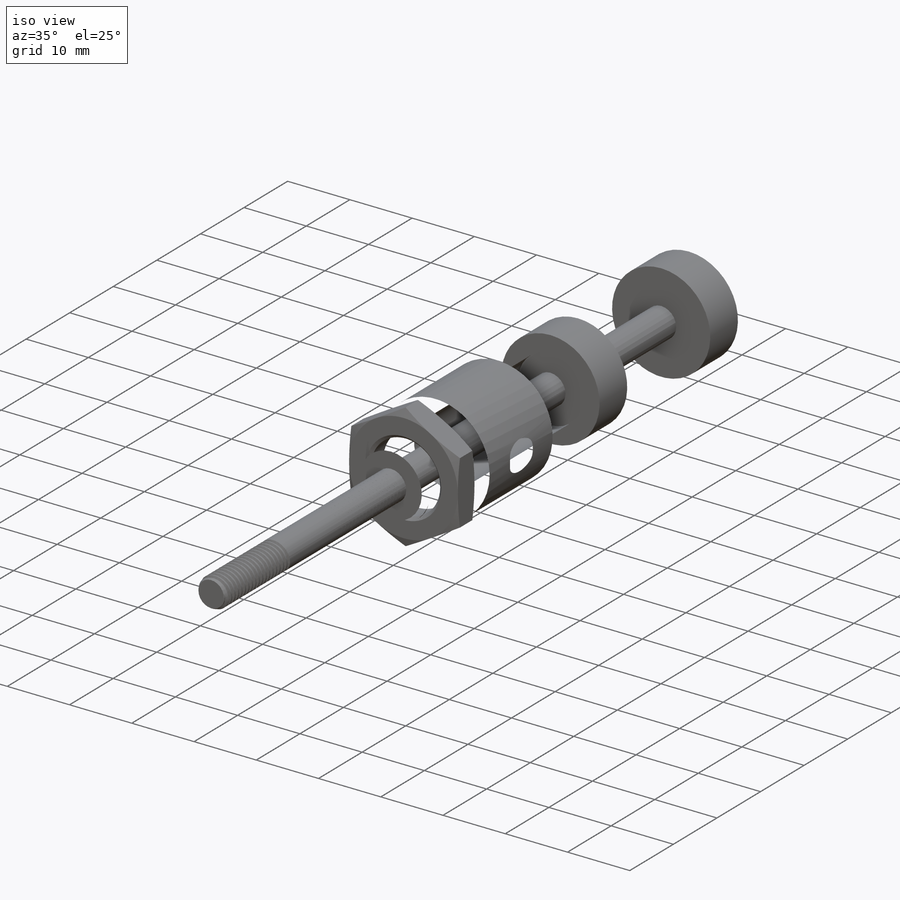
[diagram: iso view]
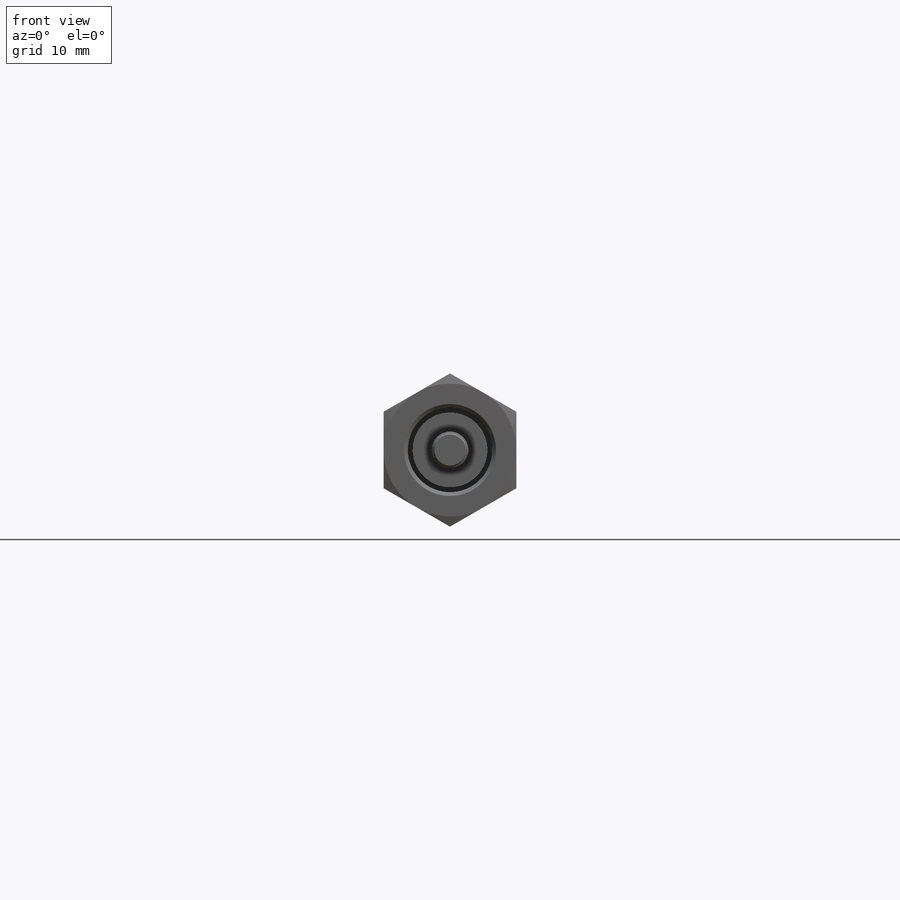
[diagram: front view]
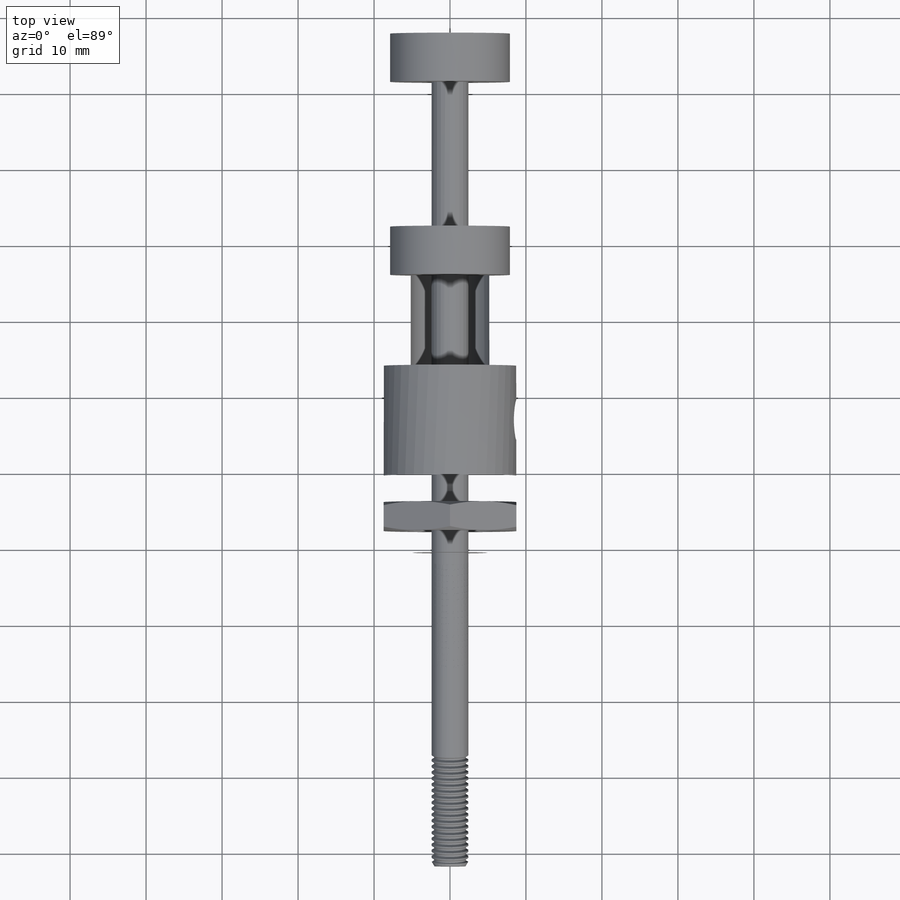
[diagram: top view]
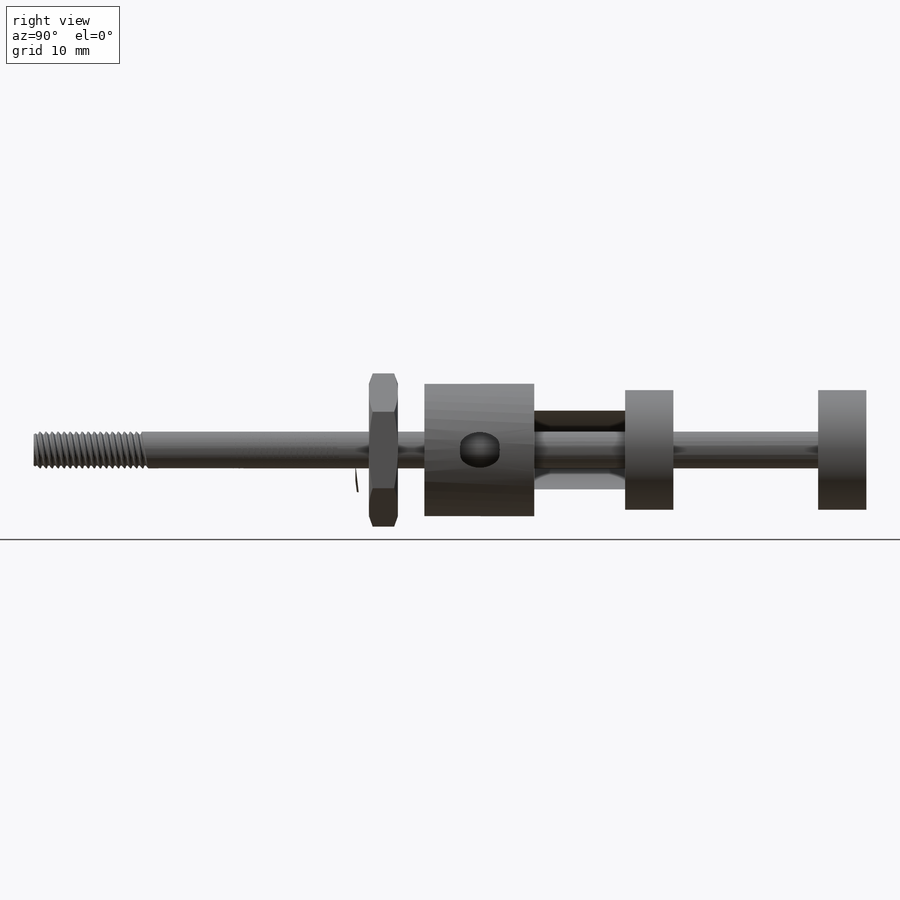
[diagram: right view]
SOLIDWORKS PART (.sldprt)
format: sldprt  version: not decoded by parser v0  size: 1,324,032 bytes
history: native  units: mm
features: sketch x16, cut_revolve x10, pattern_linear x4, plane x4, revolve x3, cut_extrude x2, material x1, chamfer x1, boolean_combine x1, extrude x1 (+12 scaffold rows collapsed)
feature tree (55):
  scaffold x12  (default folders/planes/origin — collapsed)
  material  "Material <not specified>"
  sketch  "Sketch1"  dims[c1.J Flat=11.1125mm c1.E OD=17.4498mm c1.K Flat Depth=12.7mm c1.RM Pilot=19.0246mm c1.G Pilot Length=16.002mm c2.RM Pilot=11.1125mm c2.Shaft Dia=4.826mm c2.D Wrench Flats=4.318mm c2.C Flat Length=6.35mm c2.A Thread Length=14.2748mm c2.Total Length=165.862mm c2.D1=0.0254mm c2.D2=90.0deg c3.Total Length=112.776mm c3.C Flat Length=9.525mm c3.D2=90.0deg c3.G Pilot Length=9.525mm c3.V Pilot Length=3.175mm c3.D1=34.925mm c4.D2=15.875mm]
  revolve  "Revolve1"  Angle=360deg
  sketch  "Sketch58"
  cut_revolve  "Cut-Revolve25"  Angle=360deg
  sketch  "Sketch59"  dims[D1=7.874mm]
  cut_extrude  "Cut-Extrude3"  [1 undecoded]
  sketch  "Sketch60"  dims[D2=3.9624mm D1=6.35mm]
  cut_extrude  "Cut-Extrude4"  [1 undecoded]
  chamfer  "Chamfer1"  Distance=0.635mm Angle=45deg
  sketch  "Sketch4"
  revolve  "Revolve2"  Angle=360deg
  sketch  "Sketch5"  dims[c1.D1=~0.15875mm c1.D2=0.3175mm c1.Thread Pitch=1.27mm c1.D4=~1.839336mm c2.D4=60.0deg c2.D5=1.27mm]
  cut_revolve  "Cut-Revolve2"  Angle=360deg
  sketch  "Sketch6"  dims[c1.D1=~2.105576mm c2.D1=60.0deg]
  cut_revolve  "Cut-Revolve3"  Angle=360deg
  pattern_linear  "LPattern2"  Count1=2 Count2=8 Spacing1=1.27mm Spacing2=1.27mm
  boolean_combine  "Combine1"
  sketch  "Sketch62"  dims[c1.D1=~1.006395mm c2.D1=60.0deg c2.D2=0.3175mm c2.D3=~0.15875mm c2.D4=1.27mm c2.D5=1.27mm]
  cut_revolve  "Cut-Revolve26"  Angle=360deg
  pattern_linear  "LPattern5"  Count1=10 Count2=1 Spacing1=1.27mm Spacing2=50mm
  sketch  "Sketch7"  dims[c1.Bore Dia=19.05mm c1.Piston Dia=11.1125mm c1.Stroke=152.4mm c1.D4=3.175mm c1.D5=38.1mm c1.D1=0.0254mm c1.D2=12.7mm c1.D3=6.35mm c2.Bore Dia=15.875mm c2.Stroke=190.5mm c2.D3=90.0deg c3.Stroke=25.4mm c3.D3=~2.580827mm c4.D3=45.0deg c4.D5=6.35mm c4.D6=9.525mm c4.D2=6.35mm c4.D7=15.875mm c4.D1=0.0254mm]
  cut_revolve  "Cut-Revolve5"  Angle=360deg
  sketch  "Sketch8"  dims[c1.D1=0.0508mm c1.D2=6.35mm c1.D3=~0.79375mm c2.D3=45.0deg]
  revolve  "Revolve3"  Angle=360deg
  sketch  "Sketch10"  dims[c1.D1=~0.099219mm c1.D2=~0.198437mm c1.Shaft Thread Pitch=~0.79375mm c1.D4=~0.79375mm c1.D5=~1.492597mm c2.D5=60.0deg]
  cut_revolve  "Cut-Revolve6"  Angle=360deg
  sketch  "Sketch11"  dims[c1.D1=~1.971795mm c2.D1=30.0deg]
  cut_revolve  "Cut-Revolve7"  Angle=360deg
  pattern_linear  "LPattern3"  Count1=2 Count2=18 Spacing1=0.79375mm Spacing2=0.79375mm
  pattern_linear  "LPattern4"  Count1=2 Count2=1 Spacing1=25.4mm Spacing2=1.5875mm
  plane  "Plane4"  Offset=4.7498mm
  plane  "Plane6"
  sketch  "Sketch13"  dims[c1.D1=~16.540476mm c2.D1=60.0deg c2.E0=4.826mm c2.Thread Pitch=~0.79375mm c2.D4=~0.177469mm c2.Thread Taper=3.58deg c2.D5=~0.078395mm c2.D2=~0.026194mm c2.D3=~0.030246mm c2.L2 Thread Engagement=10.2108mm c2.L4 Thread Length=15.113mm c2.ID=102.2604mm c2.Pipe OD=114.3mm c2.Overall Length=304.8mm c3.D5=33.02mm c3.D6=6.0198mm c3.L4 Thread Length=7.62mm c3.D4=~0.026194mm]
  cut_revolve  "Cut-Revolve22"  Angle=360deg
  plane  "Plane7"  Offset=7.9248mm
  sketch  "Sketch64"  dims[c1.D1=~16.540476mm c2.D1=60.0deg c2.E0=12.1158mm c2.Thread Pitch=~0.79375mm c2.D4=~0.177469mm c2.Thread Taper=3.58deg c2.D5=~0.078395mm c2.D2=~0.046567mm c2.D3=~0.053771mm c2.L2 Thread Engagement=10.2108mm c2.L4 Thread Length=15.113mm c2.ID=102.2604mm c2.Pipe OD=114.3mm c2.Overall Length=304.8mm c3.D5=33.02mm c3.D6=6.0198mm c3.L4 Thread Length=7.62mm c3.D4=4.826mm]
  cut_revolve  "Cut-Revolve27"  Angle=360deg
  plane  "Plane2"
  sketch  "Sketch54"  dims[Nut Hex=17.4625mm]
  extrude  "Extrude1"  Depth=3.81mm Nut Height=3.81mm
  sketch  "Sketch55"  dims[c1.D1=~2.577315mm c2.D1=20.0deg c2.D2=17.4625mm c2.D3=~0.535834mm c3.D3=45.0deg]
  cut_revolve  "Cut-Revolve24"  Angle=360deg
decode coverage: 33 of 38 modeling features carry decoded parameters
note: ~ marks probable driven/reference dimensions
note: 2 parameter values undecoded
note: suppression state not decoded; provenance and decode notes live in map.json
